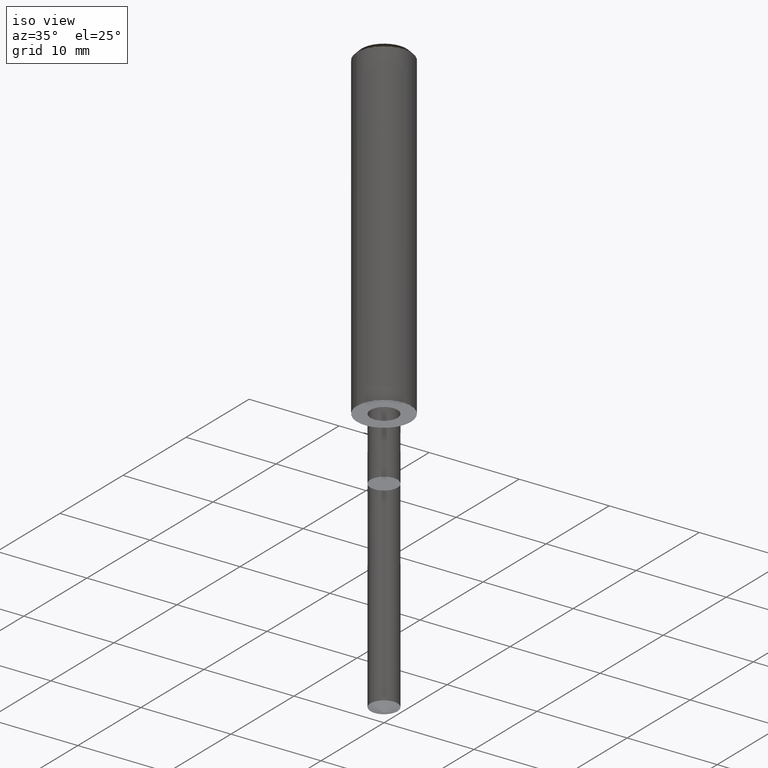
[diagram: clean part render]
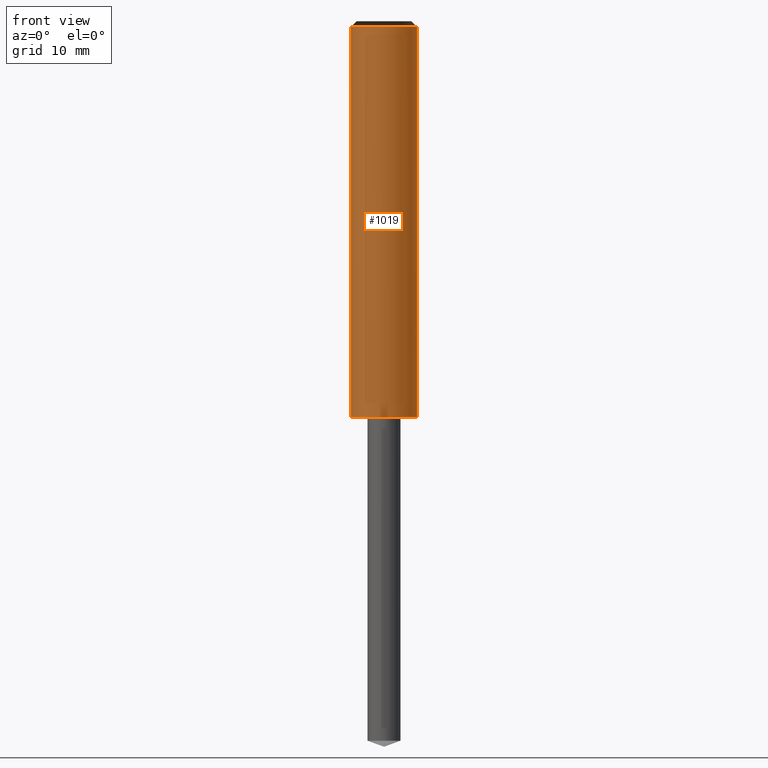
[diagram: tour spotlight — one face highlighted and labeled with its STEP entity id]
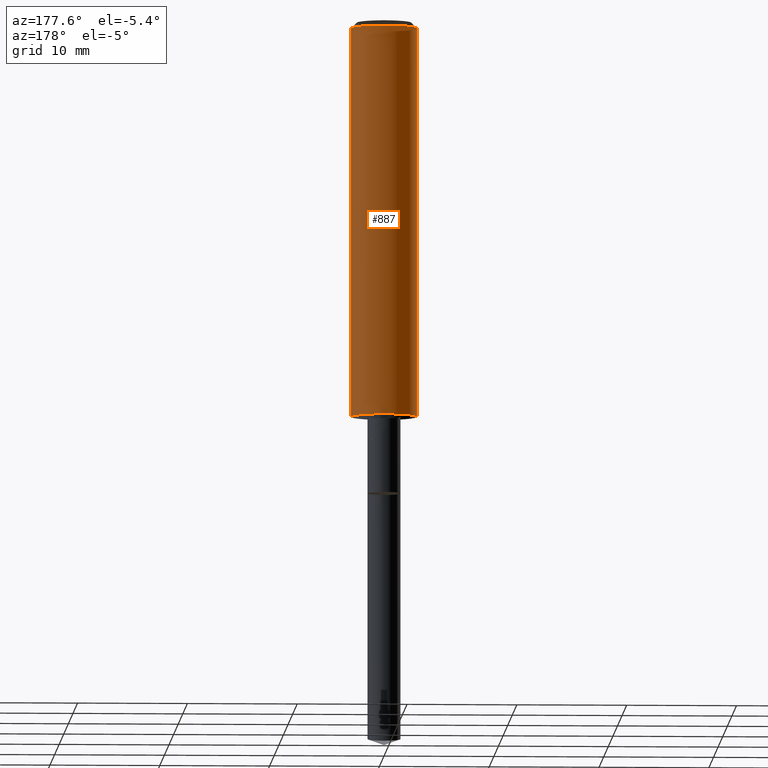
[diagram: tour spotlight — one face highlighted and labeled with its STEP entity id]
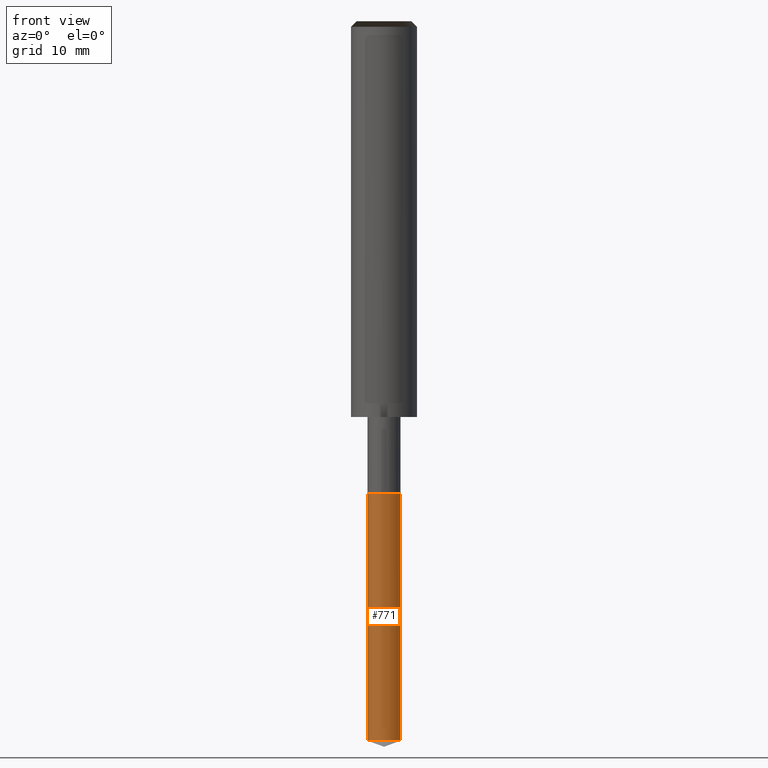
[diagram: tour spotlight — one face highlighted and labeled with its STEP entity id]
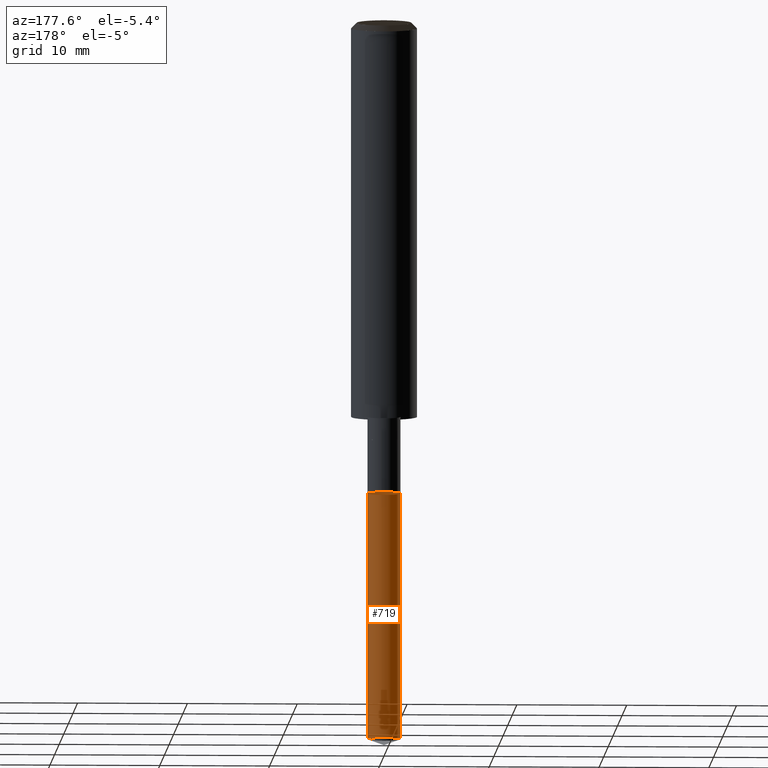
[diagram: tour spotlight — one face highlighted and labeled with its STEP entity id]
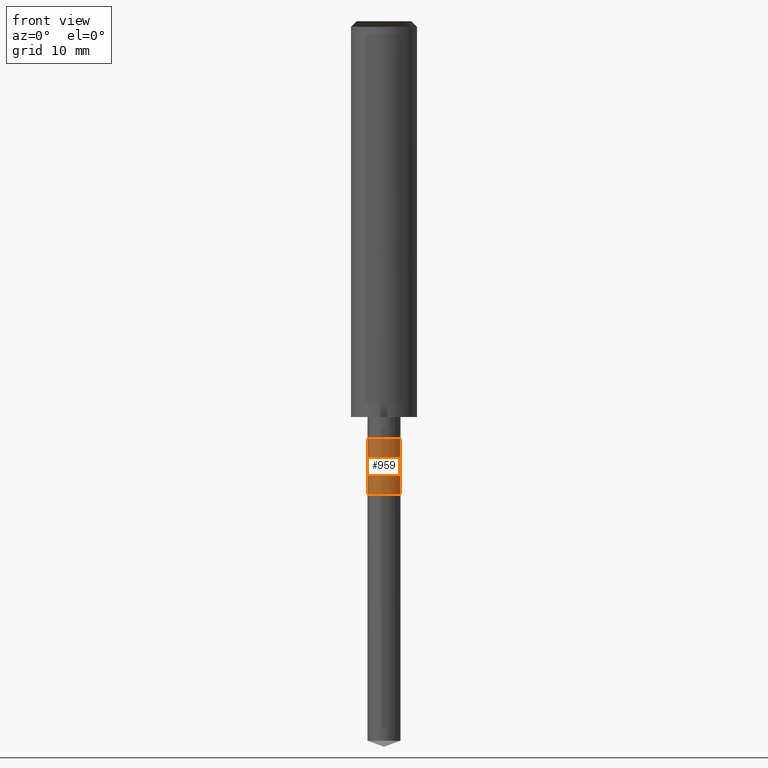
[diagram: tour spotlight — one face highlighted and labeled with its STEP entity id]
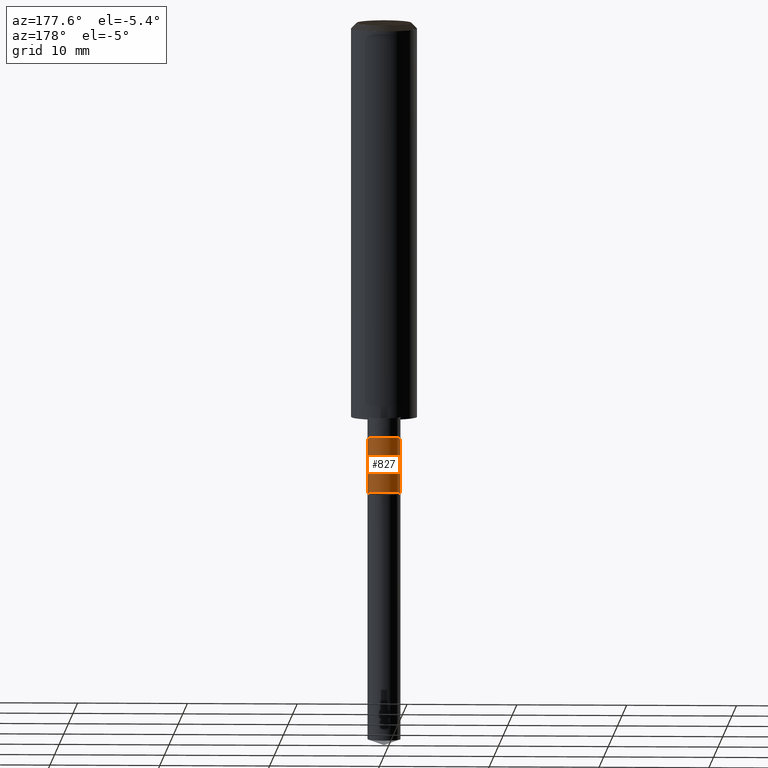
[diagram: tour spotlight — one face highlighted and labeled with its STEP entity id]
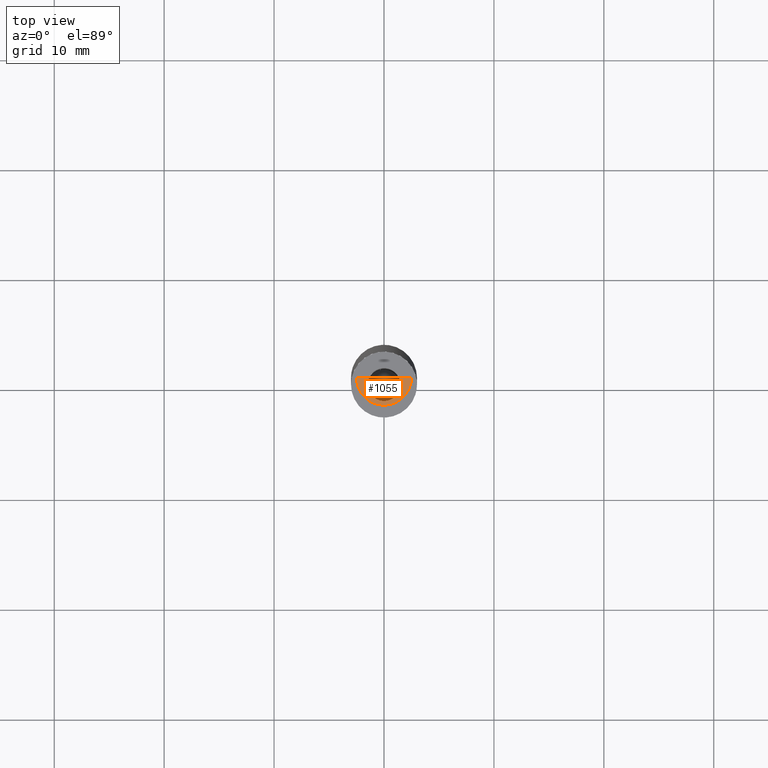
[diagram: tour spotlight — one face highlighted and labeled with its STEP entity id]
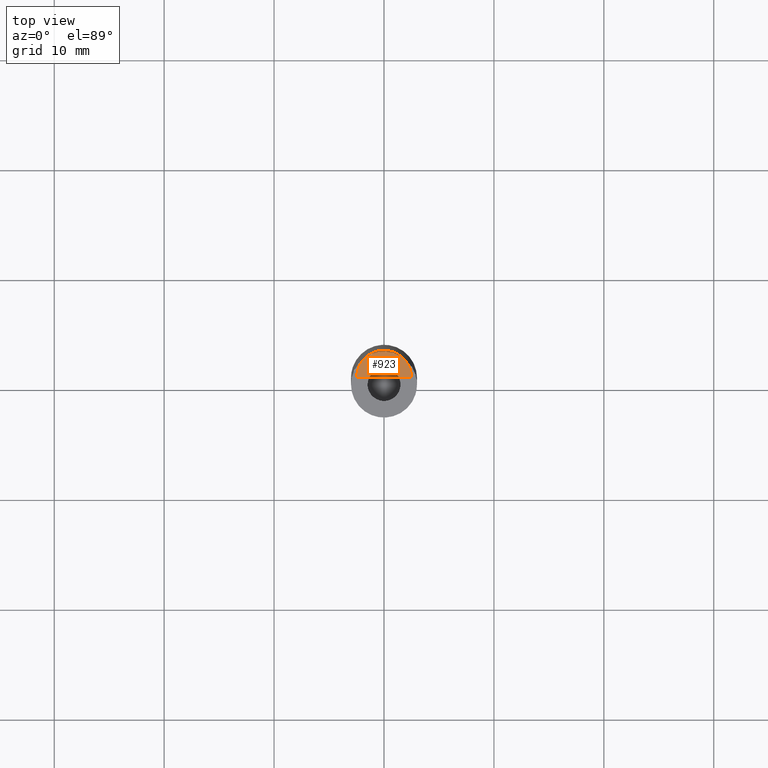
[diagram: tour spotlight — one face highlighted and labeled with its STEP entity id]
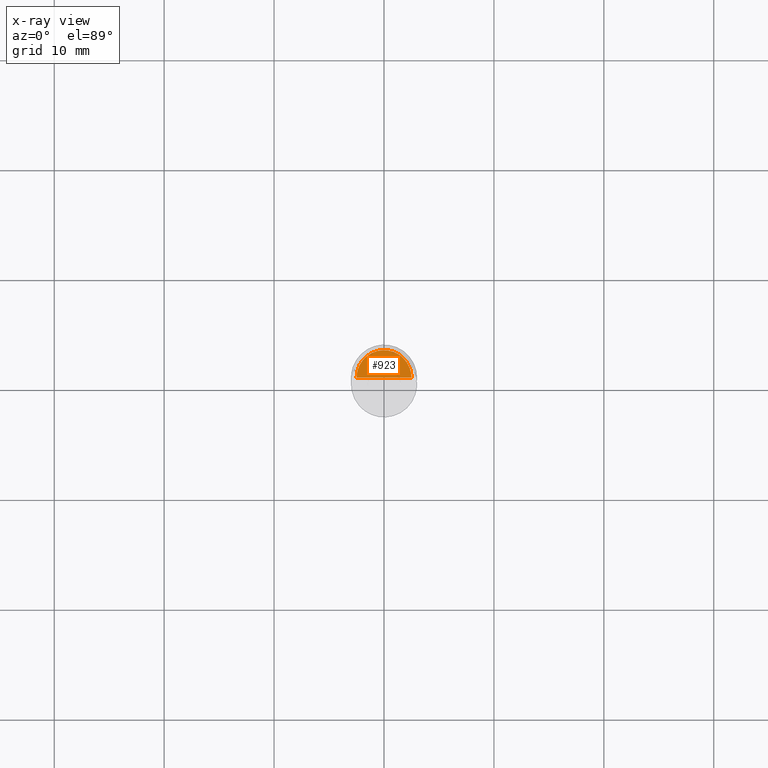
[diagram: x-ray of the same camera — body ghosted, this tour face saturated]
A machine part: a face-by-face anatomy tour. The part has 20 B-rep faces; the first image is the clean iso view, then the 8 largest visible faces are spotlighted one at a time (largest first), each with its STEP entity span.

Face 1 — front view, entity #1019. In plain terms, the highlighted face is a freeform B-spline surface patch.
Definition (entity closure, byte-faithful):
#648=CARTESIAN_POINT('',(3.0,0.0,0.0));
#652=CARTESIAN_POINT('',(-3.0,0.0,0.0));
#653=CARTESIAN_POINT('',(3.0,0.0,35.5));
#657=CARTESIAN_POINT('',(-3.0,0.0,35.5));
#670=CARTESIAN_POINT('',(-3.0,-3.0,0.0));
#671=CARTESIAN_POINT('',(0.0,-3.0,0.0));
#672=CARTESIAN_POINT('',(3.0,-3.0,0.0));
#673=CARTESIAN_POINT('',(-3.0,-3.0,35.5));
#674=CARTESIAN_POINT('',(0.0,-3.0,35.5));
#675=CARTESIAN_POINT('',(3.0,-3.0,35.5));
#1000=(
BOUNDED_SURFACE()
B_SPLINE_SURFACE(1,2,(
(#652,#670,#671,#672,#648),
(#657,#673,#674,#675,#653)
), .UNSPECIFIED.,.F.,.F.,.F.)
B_SPLINE_SURFACE_WITH_KNOTS((2,2),(3,2,3),(
0.0,1.0),(
0.0,0.5,1.0), .UNSPECIFIED.)
GEOMETRIC_REPRESENTATION_ITEM()
RATIONAL_B_SPLINE_SURFACE(((1.0,0.707106781187,1.0,0.707106781187,1.0),
(1.0,0.707106781187,1.0,0.707106781187,1.0)
))
REPRESENTATION_ITEM('')
SURFACE()
);
#1001=(
BOUNDED_CURVE()
B_SPLINE_CURVE(2,(#648,#672,#671,#670,#652),.UNSPECIFIED.,.F.,.F.)
B_SPLINE_CURVE_WITH_KNOTS((3,2,3),
(0.0,0.5,1.0),.UNSPECIFIED.)
CURVE()
GEOMETRIC_REPRESENTATION_ITEM()
RATIONAL_B_SPLINE_CURVE((1.0,0.707106781187,1.0,0.707106781187,1.0))
REPRESENTATION_ITEM('')
);
#1002=(
BOUNDED_CURVE()
B_SPLINE_CURVE(1,(#652,#657),.UNSPECIFIED.,.F.,.F.)
B_SPLINE_CURVE_WITH_KNOTS((2,2),
(0.0,1.0),.UNSPECIFIED.)
CURVE()
GEOMETRIC_REPRESENTATION_ITEM()
RATIONAL_B_SPLINE_CURVE((1.0,1.0))
REPRESENTATION_ITEM('')
);
#1003=(
BOUNDED_CURVE()
B_SPLINE_CURVE(2,(#657,#673,#674,#675,#653),.UNSPECIFIED.,.F.,.F.)
B_SPLINE_CURVE_WITH_KNOTS((3,2,3),
(0.0,0.5,1.0),.UNSPECIFIED.)
CURVE()
GEOMETRIC_REPRESENTATION_ITEM()
RATIONAL_B_SPLINE_CURVE((1.0,0.707106781187,1.0,0.707106781187,1.0))
REPRESENTATION_ITEM('')
);
#1004=(
BOUNDED_CURVE()
B_SPLINE_CURVE(1,(#653,#648),.UNSPECIFIED.,.F.,.F.)
B_SPLINE_CURVE_WITH_KNOTS((2,2),
(0.0,1.0),.UNSPECIFIED.)
CURVE()
GEOMETRIC_REPRESENTATION_ITEM()
RATIONAL_B_SPLINE_CURVE((1.0,1.0))
REPRESENTATION_ITEM('')
);
#1005=VERTEX_POINT('',#648);
#1006=VERTEX_POINT('',#652);
#1007=VERTEX_POINT('',#653);
#1008=VERTEX_POINT('',#657);
#1009=EDGE_CURVE('',#1005,#1006,#1001,.T.);
#1010=EDGE_CURVE('',#1006,#1008,#1002,.T.);
#1011=EDGE_CURVE('',#1008,#1007,#1003,.T.);
#1012=EDGE_CURVE('',#1007,#1005,#1004,.T.);
#1013=ORIENTED_EDGE('',*,*,#1009,.T.);
#1014=ORIENTED_EDGE('',*,*,#1010,.T.);
#1015=ORIENTED_EDGE('',*,*,#1011,.T.);
#1016=ORIENTED_EDGE('',*,*,#1012,.T.);
#1017=EDGE_LOOP('',(#1013,#1014,#1015,#1016));
#1018=FACE_OUTER_BOUND('',#1017,.T.);
#1019=ADVANCED_FACE('',(#1018),#1000,.T.);

Face 2 — auxiliary view, entity #887. In plain terms, the highlighted face is a freeform B-spline surface patch.
Definition (entity closure, byte-faithful):
#648=CARTESIAN_POINT('',(3.0,0.0,0.0));
#649=CARTESIAN_POINT('',(3.0,3.0,0.0));
#650=CARTESIAN_POINT('',(0.0,3.0,0.0));
#651=CARTESIAN_POINT('',(-3.0,3.0,0.0));
#652=CARTESIAN_POINT('',(-3.0,0.0,0.0));
#653=CARTESIAN_POINT('',(3.0,0.0,35.5));
#654=CARTESIAN_POINT('',(3.0,3.0,35.5));
#655=CARTESIAN_POINT('',(0.0,3.0,35.5));
#656=CARTESIAN_POINT('',(-3.0,3.0,35.5));
#657=CARTESIAN_POINT('',(-3.0,0.0,35.5));
#868=(
BOUNDED_SURFACE()
B_SPLINE_SURFACE(1,2,(
(#648,#649,#650,#651,#652),
(#653,#654,#655,#656,#657)
), .UNSPECIFIED.,.F.,.F.,.F.)
B_SPLINE_SURFACE_WITH_KNOTS((2,2),(3,2,3),(
0.0,1.0),(
0.0,0.5,1.0), .UNSPECIFIED.)
GEOMETRIC_REPRESENTATION_ITEM()
RATIONAL_B_SPLINE_SURFACE(((1.0,0.707106781187,1.0,0.707106781187,1.0),
(1.0,0.707106781187,1.0,0.707106781187,1.0)
))
REPRESENTATION_ITEM('')
SURFACE()
);
#869=(
BOUNDED_CURVE()
B_SPLINE_CURVE(2,(#652,#651,#650,#649,#648),.UNSPECIFIED.,.F.,.F.)
B_SPLINE_CURVE_WITH_KNOTS((3,2,3),
(0.0,0.5,1.0),.UNSPECIFIED.)
CURVE()
GEOMETRIC_REPRESENTATION_ITEM()
RATIONAL_B_SPLINE_CURVE((1.0,0.707106781187,1.0,0.707106781187,1.0))
REPRESENTATION_ITEM('')
);
#870=(
BOUNDED_CURVE()
B_SPLINE_CURVE(1,(#648,#653),.UNSPECIFIED.,.F.,.F.)
B_SPLINE_CURVE_WITH_KNOTS((2,2),
(0.0,1.0),.UNSPECIFIED.)
CURVE()
GEOMETRIC_REPRESENTATION_ITEM()
RATIONAL_B_SPLINE_CURVE((1.0,1.0))
REPRESENTATION_ITEM('')
);
#871=(
BOUNDED_CURVE()
B_SPLINE_CURVE(2,(#653,#654,#655,#656,#657),.UNSPECIFIED.,.F.,.F.)
B_SPLINE_CURVE_WITH_KNOTS((3,2,3),
(0.0,0.5,1.0),.UNSPECIFIED.)
CURVE()
GEOMETRIC_REPRESENTATION_ITEM()
RATIONAL_B_SPLINE_CURVE((1.0,0.707106781187,1.0,0.707106781187,1.0))
REPRESENTATION_ITEM('')
);
#872=(
BOUNDED_CURVE()
B_SPLINE_CURVE(1,(#657,#652),.UNSPECIFIED.,.F.,.F.)
B_SPLINE_CURVE_WITH_KNOTS((2,2),
(0.0,1.0),.UNSPECIFIED.)
CURVE()
GEOMETRIC_REPRESENTATION_ITEM()
RATIONAL_B_SPLINE_CURVE((1.0,1.0))
REPRESENTATION_ITEM('')
);
#873=VERTEX_POINT('',#648);
#874=VERTEX_POINT('',#652);
#875=VERTEX_POINT('',#653);
#876=VERTEX_POINT('',#657);
#877=EDGE_CURVE('',#874,#873,#869,.T.);
#878=EDGE_CURVE('',#873,#875,#870,.T.);
#879=EDGE_CURVE('',#875,#876,#871,.T.);
#880=EDGE_CURVE('',#876,#874,#872,.T.);
#881=ORIENTED_EDGE('',*,*,#877,.T.);
#882=ORIENTED_EDGE('',*,*,#878,.T.);
#883=ORIENTED_EDGE('',*,*,#879,.T.);
#884=ORIENTED_EDGE('',*,*,#880,.T.);
#885=EDGE_LOOP('',(#881,#882,#883,#884));
#886=FACE_OUTER_BOUND('',#885,.T.);
#887=ADVANCED_FACE('',(#886),#868,.T.);

Face 3 — front view, entity #771. In plain terms, the highlighted face is a freeform B-spline surface patch.
Definition (entity closure, byte-faithful):
#621=CARTESIAN_POINT('',(1.5,0.0,-29.454044648601));
#625=CARTESIAN_POINT('',(-1.5,0.0,-29.454044648601));
#626=CARTESIAN_POINT('',(1.5,0.0,-7.0));
#630=CARTESIAN_POINT('',(-1.5,0.0,-7.0));
#632=CARTESIAN_POINT('',(-1.5,-1.5,-29.454044648601));
#633=CARTESIAN_POINT('',(0.0,-1.5,-29.454044648601));
#634=CARTESIAN_POINT('',(1.5,-1.5,-29.454044648601));
#635=CARTESIAN_POINT('',(-1.5,-1.5,-7.0));
#636=CARTESIAN_POINT('',(0.0,-1.5,-7.0));
#637=CARTESIAN_POINT('',(1.5,-1.5,-7.0));
#752=(
BOUNDED_SURFACE()
B_SPLINE_SURFACE(1,2,(
(#625,#632,#633,#634,#621),
(#630,#635,#636,#637,#626)
), .UNSPECIFIED.,.F.,.F.,.F.)
B_SPLINE_SURFACE_WITH_KNOTS((2,2),(3,2,3),(
0.0,1.0),(
0.0,0.5,1.0), .UNSPECIFIED.)
GEOMETRIC_REPRESENTATION_ITEM()
RATIONAL_B_SPLINE_SURFACE(((1.0,0.707106781187,1.0,0.707106781187,1.0),
(1.0,0.707106781187,1.0,0.707106781187,1.0)
))
REPRESENTATION_ITEM('')
SURFACE()
);
#753=(
BOUNDED_CURVE()
B_SPLINE_CURVE(2,(#621,#634,#633,#632,#625),.UNSPECIFIED.,.F.,.F.)
B_SPLINE_CURVE_WITH_KNOTS((3,2,3),
(0.0,0.5,1.0),.UNSPECIFIED.)
CURVE()
GEOMETRIC_REPRESENTATION_ITEM()
RATIONAL_B_SPLINE_CURVE((1.0,0.707106781187,1.0,0.707106781187,1.0))
REPRESENTATION_ITEM('')
);
#754=(
BOUNDED_CURVE()
B_SPLINE_CURVE(1,(#625,#630),.UNSPECIFIED.,.F.,.F.)
B_SPLINE_CURVE_WITH_KNOTS((2,2),
(0.0,1.0),.UNSPECIFIED.)
CURVE()
GEOMETRIC_REPRESENTATION_ITEM()
RATIONAL_B_SPLINE_CURVE((1.0,1.0))
REPRESENTATION_ITEM('')
);
#755=(
BOUNDED_CURVE()
B_SPLINE_CURVE(2,(#630,#635,#636,#637,#626),.UNSPECIFIED.,.F.,.F.)
B_SPLINE_CURVE_WITH_KNOTS((3,2,3),
(0.0,0.5,1.0),.UNSPECIFIED.)
CURVE()
GEOMETRIC_REPRESENTATION_ITEM()
RATIONAL_B_SPLINE_CURVE((1.0,0.707106781187,1.0,0.707106781187,1.0))
REPRESENTATION_ITEM('')
);
#756=(
BOUNDED_CURVE()
B_SPLINE_CURVE(1,(#626,#621),.UNSPECIFIED.,.F.,.F.)
B_SPLINE_CURVE_WITH_KNOTS((2,2),
(0.0,1.0),.UNSPECIFIED.)
CURVE()
GEOMETRIC_REPRESENTATION_ITEM()
RATIONAL_B_SPLINE_CURVE((1.0,1.0))
REPRESENTATION_ITEM('')
);
#757=VERTEX_POINT('',#621);
#758=VERTEX_POINT('',#625);
#759=VERTEX_POINT('',#626);
#760=VERTEX_POINT('',#630);
#761=EDGE_CURVE('',#757,#758,#753,.T.);
#762=EDGE_CURVE('',#758,#760,#754,.T.);
#763=EDGE_CURVE('',#760,#759,#755,.T.);
#764=EDGE_CURVE('',#759,#757,#756,.T.);
#765=ORIENTED_EDGE('',*,*,#761,.T.);
#766=ORIENTED_EDGE('',*,*,#762,.T.);
#767=ORIENTED_EDGE('',*,*,#763,.T.);
#768=ORIENTED_EDGE('',*,*,#764,.T.);
#769=EDGE_LOOP('',(#765,#766,#767,#768));
#770=FACE_OUTER_BOUND('',#769,.T.);
#771=ADVANCED_FACE('',(#770),#752,.T.);

Face 4 — auxiliary view, entity #719. In plain terms, the highlighted face is a freeform B-spline surface patch.
Definition (entity closure, byte-faithful):
#621=CARTESIAN_POINT('',(1.5,0.0,-29.454044648601));
#622=CARTESIAN_POINT('',(1.5,1.5,-29.454044648601));
#623=CARTESIAN_POINT('',(0.0,1.5,-29.454044648601));
#624=CARTESIAN_POINT('',(-1.5,1.5,-29.454044648601));
#625=CARTESIAN_POINT('',(-1.5,0.0,-29.454044648601));
#626=CARTESIAN_POINT('',(1.5,0.0,-7.0));
#627=CARTESIAN_POINT('',(1.5,1.5,-7.0));
#628=CARTESIAN_POINT('',(0.0,1.5,-7.0));
#629=CARTESIAN_POINT('',(-1.5,1.5,-7.0));
#630=CARTESIAN_POINT('',(-1.5,0.0,-7.0));
#700=(
BOUNDED_SURFACE()
B_SPLINE_SURFACE(1,2,(
(#621,#622,#623,#624,#625),
(#626,#627,#628,#629,#630)
), .UNSPECIFIED.,.F.,.F.,.F.)
B_SPLINE_SURFACE_WITH_KNOTS((2,2),(3,2,3),(
0.0,1.0),(
0.0,0.5,1.0), .UNSPECIFIED.)
GEOMETRIC_REPRESENTATION_ITEM()
RATIONAL_B_SPLINE_SURFACE(((1.0,0.707106781187,1.0,0.707106781187,1.0),
(1.0,0.707106781187,1.0,0.707106781187,1.0)
))
REPRESENTATION_ITEM('')
SURFACE()
);
#701=(
BOUNDED_CURVE()
B_SPLINE_CURVE(2,(#625,#624,#623,#622,#621),.UNSPECIFIED.,.F.,.F.)
B_SPLINE_CURVE_WITH_KNOTS((3,2,3),
(0.0,0.5,1.0),.UNSPECIFIED.)
CURVE()
GEOMETRIC_REPRESENTATION_ITEM()
RATIONAL_B_SPLINE_CURVE((1.0,0.707106781187,1.0,0.707106781187,1.0))
REPRESENTATION_ITEM('')
);
#702=(
BOUNDED_CURVE()
B_SPLINE_CURVE(1,(#621,#626),.UNSPECIFIED.,.F.,.F.)
B_SPLINE_CURVE_WITH_KNOTS((2,2),
(0.0,1.0),.UNSPECIFIED.)
CURVE()
GEOMETRIC_REPRESENTATION_ITEM()
RATIONAL_B_SPLINE_CURVE((1.0,1.0))
REPRESENTATION_ITEM('')
);
#703=(
BOUNDED_CURVE()
B_SPLINE_CURVE(2,(#626,#627,#628,#629,#630),.UNSPECIFIED.,.F.,.F.)
B_SPLINE_CURVE_WITH_KNOTS((3,2,3),
(0.0,0.5,1.0),.UNSPECIFIED.)
CURVE()
GEOMETRIC_REPRESENTATION_ITEM()
RATIONAL_B_SPLINE_CURVE((1.0,0.707106781187,1.0,0.707106781187,1.0))
REPRESENTATION_ITEM('')
);
#704=(
BOUNDED_CURVE()
B_SPLINE_CURVE(1,(#630,#625),.UNSPECIFIED.,.F.,.F.)
B_SPLINE_CURVE_WITH_KNOTS((2,2),
(0.0,1.0),.UNSPECIFIED.)
CURVE()
GEOMETRIC_REPRESENTATION_ITEM()
RATIONAL_B_SPLINE_CURVE((1.0,1.0))
REPRESENTATION_ITEM('')
);
#705=VERTEX_POINT('',#621);
#706=VERTEX_POINT('',#625);
#707=VERTEX_POINT('',#626);
#708=VERTEX_POINT('',#630);
#709=EDGE_CURVE('',#706,#705,#701,.T.);
#710=EDGE_CURVE('',#705,#707,#702,.T.);
#711=EDGE_CURVE('',#707,#708,#703,.T.);
#712=EDGE_CURVE('',#708,#706,#704,.T.);
#713=ORIENTED_EDGE('',*,*,#709,.T.);
#714=ORIENTED_EDGE('',*,*,#710,.T.);
#715=ORIENTED_EDGE('',*,*,#711,.T.);
#716=ORIENTED_EDGE('',*,*,#712,.T.);
#717=EDGE_LOOP('',(#713,#714,#715,#716));
#718=FACE_OUTER_BOUND('',#717,.T.);
#719=ADVANCED_FACE('',(#718),#700,.T.);

Face 5 — front view, entity #959. In plain terms, the highlighted face is a freeform B-spline surface patch.
Definition (entity closure, byte-faithful):
#626=CARTESIAN_POINT('',(1.5,0.0,-7.0));
#630=CARTESIAN_POINT('',(-1.5,0.0,-7.0));
#635=CARTESIAN_POINT('',(-1.5,-1.5,-7.0));
#636=CARTESIAN_POINT('',(0.0,-1.5,-7.0));
#637=CARTESIAN_POINT('',(1.5,-1.5,-7.0));
#638=CARTESIAN_POINT('',(1.5,0.0,-2.0));
#642=CARTESIAN_POINT('',(-1.5,0.0,-2.0));
#664=CARTESIAN_POINT('',(-1.5,-1.5,-2.0));
#665=CARTESIAN_POINT('',(0.0,-1.5,-2.0));
#666=CARTESIAN_POINT('',(1.5,-1.5,-2.0));
#940=(
BOUNDED_SURFACE()
B_SPLINE_SURFACE(1,2,(
(#630,#635,#636,#637,#626),
(#642,#664,#665,#666,#638)
), .UNSPECIFIED.,.F.,.F.,.F.)
B_SPLINE_SURFACE_WITH_KNOTS((2,2),(3,2,3),(
0.0,1.0),(
0.0,0.5,1.0), .UNSPECIFIED.)
GEOMETRIC_REPRESENTATION_ITEM()
RATIONAL_B_SPLINE_SURFACE(((1.0,0.707106781187,1.0,0.707106781187,1.0),
(1.0,0.707106781187,1.0,0.707106781187,1.0)
))
REPRESENTATION_ITEM('')
SURFACE()
);
#941=(
BOUNDED_CURVE()
B_SPLINE_CURVE(2,(#626,#637,#636,#635,#630),.UNSPECIFIED.,.F.,.F.)
B_SPLINE_CURVE_WITH_KNOTS((3,2,3),
(0.0,0.5,1.0),.UNSPECIFIED.)
CURVE()
GEOMETRIC_REPRESENTATION_ITEM()
RATIONAL_B_SPLINE_CURVE((1.0,0.707106781187,1.0,0.707106781187,1.0))
REPRESENTATION_ITEM('')
);
#942=(
BOUNDED_CURVE()
B_SPLINE_CURVE(1,(#630,#642),.UNSPECIFIED.,.F.,.F.)
B_SPLINE_CURVE_WITH_KNOTS((2,2),
(0.0,1.0),.UNSPECIFIED.)
CURVE()
GEOMETRIC_REPRESENTATION_ITEM()
RATIONAL_B_SPLINE_CURVE((1.0,1.0))
REPRESENTATION_ITEM('')
);
#943=(
BOUNDED_CURVE()
B_SPLINE_CURVE(2,(#642,#664,#665,#666,#638),.UNSPECIFIED.,.F.,.F.)
B_SPLINE_CURVE_WITH_KNOTS((3,2,3),
(0.0,0.5,1.0),.UNSPECIFIED.)
CURVE()
GEOMETRIC_REPRESENTATION_ITEM()
RATIONAL_B_SPLINE_CURVE((1.0,0.707106781187,1.0,0.707106781187,1.0))
REPRESENTATION_ITEM('')
);
#944=(
BOUNDED_CURVE()
B_SPLINE_CURVE(1,(#638,#626),.UNSPECIFIED.,.F.,.F.)
B_SPLINE_CURVE_WITH_KNOTS((2,2),
(0.0,1.0),.UNSPECIFIED.)
CURVE()
GEOMETRIC_REPRESENTATION_ITEM()
RATIONAL_B_SPLINE_CURVE((1.0,1.0))
REPRESENTATION_ITEM('')
);
#945=VERTEX_POINT('',#626);
#946=VERTEX_POINT('',#630);
#947=VERTEX_POINT('',#638);
#948=VERTEX_POINT('',#642);
#949=EDGE_CURVE('',#945,#946,#941,.T.);
#950=EDGE_CURVE('',#946,#948,#942,.T.);
#951=EDGE_CURVE('',#948,#947,#943,.T.);
#952=EDGE_CURVE('',#947,#945,#944,.T.);
#953=ORIENTED_EDGE('',*,*,#949,.T.);
#954=ORIENTED_EDGE('',*,*,#950,.T.);
#955=ORIENTED_EDGE('',*,*,#951,.T.);
#956=ORIENTED_EDGE('',*,*,#952,.T.);
#957=EDGE_LOOP('',(#953,#954,#955,#956));
#958=FACE_OUTER_BOUND('',#957,.T.);
#959=ADVANCED_FACE('',(#958),#940,.T.);

Face 6 — auxiliary view, entity #827. In plain terms, the highlighted face is a freeform B-spline surface patch.
Definition (entity closure, byte-faithful):
#626=CARTESIAN_POINT('',(1.5,0.0,-7.0));
#627=CARTESIAN_POINT('',(1.5,1.5,-7.0));
#628=CARTESIAN_POINT('',(0.0,1.5,-7.0));
#629=CARTESIAN_POINT('',(-1.5,1.5,-7.0));
#630=CARTESIAN_POINT('',(-1.5,0.0,-7.0));
#638=CARTESIAN_POINT('',(1.5,0.0,-2.0));
#639=CARTESIAN_POINT('',(1.5,1.5,-2.0));
#640=CARTESIAN_POINT('',(0.0,1.5,-2.0));
#641=CARTESIAN_POINT('',(-1.5,1.5,-2.0));
#642=CARTESIAN_POINT('',(-1.5,0.0,-2.0));
#808=(
BOUNDED_SURFACE()
B_SPLINE_SURFACE(1,2,(
(#626,#627,#628,#629,#630),
(#638,#639,#640,#641,#642)
), .UNSPECIFIED.,.F.,.F.,.F.)
B_SPLINE_SURFACE_WITH_KNOTS((2,2),(3,2,3),(
0.0,1.0),(
0.0,0.5,1.0), .UNSPECIFIED.)
GEOMETRIC_REPRESENTATION_ITEM()
RATIONAL_B_SPLINE_SURFACE(((1.0,0.707106781187,1.0,0.707106781187,1.0),
(1.0,0.707106781187,1.0,0.707106781187,1.0)
))
REPRESENTATION_ITEM('')
SURFACE()
);
#809=(
BOUNDED_CURVE()
B_SPLINE_CURVE(2,(#630,#629,#628,#627,#626),.UNSPECIFIED.,.F.,.F.)
B_SPLINE_CURVE_WITH_KNOTS((3,2,3),
(0.0,0.5,1.0),.UNSPECIFIED.)
CURVE()
GEOMETRIC_REPRESENTATION_ITEM()
RATIONAL_B_SPLINE_CURVE((1.0,0.707106781187,1.0,0.707106781187,1.0))
REPRESENTATION_ITEM('')
);
#810=(
BOUNDED_CURVE()
B_SPLINE_CURVE(1,(#626,#638),.UNSPECIFIED.,.F.,.F.)
B_SPLINE_CURVE_WITH_KNOTS((2,2),
(0.0,1.0),.UNSPECIFIED.)
CURVE()
GEOMETRIC_REPRESENTATION_ITEM()
RATIONAL_B_SPLINE_CURVE((1.0,1.0))
REPRESENTATION_ITEM('')
);
#811=(
BOUNDED_CURVE()
B_SPLINE_CURVE(2,(#638,#639,#640,#641,#642),.UNSPECIFIED.,.F.,.F.)
B_SPLINE_CURVE_WITH_KNOTS((3,2,3),
(0.0,0.5,1.0),.UNSPECIFIED.)
CURVE()
GEOMETRIC_REPRESENTATION_ITEM()
RATIONAL_B_SPLINE_CURVE((1.0,0.707106781187,1.0,0.707106781187,1.0))
REPRESENTATION_ITEM('')
);
#812=(
BOUNDED_CURVE()
B_SPLINE_CURVE(1,(#642,#630),.UNSPECIFIED.,.F.,.F.)
B_SPLINE_CURVE_WITH_KNOTS((2,2),
(0.0,1.0),.UNSPECIFIED.)
CURVE()
GEOMETRIC_REPRESENTATION_ITEM()
RATIONAL_B_SPLINE_CURVE((1.0,1.0))
REPRESENTATION_ITEM('')
);
#813=VERTEX_POINT('',#626);
#814=VERTEX_POINT('',#630);
#815=VERTEX_POINT('',#638);
#816=VERTEX_POINT('',#642);
#817=EDGE_CURVE('',#814,#813,#809,.T.);
#818=EDGE_CURVE('',#813,#815,#810,.T.);
#819=EDGE_CURVE('',#815,#816,#811,.T.);
#820=EDGE_CURVE('',#816,#814,#812,.T.);
#821=ORIENTED_EDGE('',*,*,#817,.T.);
#822=ORIENTED_EDGE('',*,*,#818,.T.);
#823=ORIENTED_EDGE('',*,*,#819,.T.);
#824=ORIENTED_EDGE('',*,*,#820,.T.);
#825=EDGE_LOOP('',(#821,#822,#823,#824));
#826=FACE_OUTER_BOUND('',#825,.T.);
#827=ADVANCED_FACE('',(#826),#808,.T.);

Face 7 — top view, entity #1055. In plain terms, the highlighted face is a freeform B-spline surface patch.
Definition (entity closure, byte-faithful):
#658=CARTESIAN_POINT('',(2.5,0.0,36.0));
#662=CARTESIAN_POINT('',(-2.5,0.0,36.0));
#663=CARTESIAN_POINT('',(0.0,0.0,36.0));
#676=CARTESIAN_POINT('',(-2.5,-2.5,36.0));
#677=CARTESIAN_POINT('',(0.0,-2.5,36.0));
#678=CARTESIAN_POINT('',(2.5,-2.5,36.0));
#1040=(
BOUNDED_SURFACE()
B_SPLINE_SURFACE(1,2,(
(#662,#676,#677,#678,#658),
(#663,#663,#663,#663,#663)
), .UNSPECIFIED.,.F.,.F.,.F.)
B_SPLINE_SURFACE_WITH_KNOTS((2,2),(3,2,3),(
0.0,1.0),(
0.0,0.5,1.0), .UNSPECIFIED.)
GEOMETRIC_REPRESENTATION_ITEM()
RATIONAL_B_SPLINE_SURFACE(((1.0,0.707106781187,1.0,0.707106781187,1.0),
(1.0,0.707106781187,1.0,0.707106781187,1.0)
))
REPRESENTATION_ITEM('')
SURFACE()
);
#1041=(
BOUNDED_CURVE()
B_SPLINE_CURVE(2,(#658,#678,#677,#676,#662),.UNSPECIFIED.,.F.,.F.)
B_SPLINE_CURVE_WITH_KNOTS((3,2,3),
(0.0,0.5,1.0),.UNSPECIFIED.)
CURVE()
GEOMETRIC_REPRESENTATION_ITEM()
RATIONAL_B_SPLINE_CURVE((1.0,0.707106781187,1.0,0.707106781187,1.0))
REPRESENTATION_ITEM('')
);
#1042=(
BOUNDED_CURVE()
B_SPLINE_CURVE(1,(#662,#663),.UNSPECIFIED.,.F.,.F.)
B_SPLINE_CURVE_WITH_KNOTS((2,2),
(0.0,1.0),.UNSPECIFIED.)
CURVE()
GEOMETRIC_REPRESENTATION_ITEM()
RATIONAL_B_SPLINE_CURVE((1.0,1.0))
REPRESENTATION_ITEM('')
);
#1043=(
BOUNDED_CURVE()
B_SPLINE_CURVE(1,(#663,#658),.UNSPECIFIED.,.F.,.F.)
B_SPLINE_CURVE_WITH_KNOTS((2,2),
(0.0,1.0),.UNSPECIFIED.)
CURVE()
GEOMETRIC_REPRESENTATION_ITEM()
RATIONAL_B_SPLINE_CURVE((1.0,1.0))
REPRESENTATION_ITEM('')
);
#1044=VERTEX_POINT('',#658);
#1045=VERTEX_POINT('',#662);
#1046=VERTEX_POINT('',#663);
#1047=EDGE_CURVE('',#1044,#1045,#1041,.T.);
#1048=EDGE_CURVE('',#1045,#1046,#1042,.T.);
#1049=EDGE_CURVE('',#1046,#1044,#1043,.T.);
#1050=ORIENTED_EDGE('',*,*,#1047,.T.);
#1051=ORIENTED_EDGE('',*,*,#1048,.T.);
#1052=ORIENTED_EDGE('',*,*,#1049,.T.);
#1053=EDGE_LOOP('',(#1050,#1051,#1052));
#1054=FACE_OUTER_BOUND('',#1053,.T.);
#1055=ADVANCED_FACE('',(#1054),#1040,.T.);

Face 8 — top view, entity #923. An x-ray twin of the same camera follows (body ghosted, this face saturated) — the face is partly hidden behind the body. In plain terms, the highlighted face is a freeform B-spline surface patch.
Definition (entity closure, byte-faithful):
#658=CARTESIAN_POINT('',(2.5,0.0,36.0));
#659=CARTESIAN_POINT('',(2.5,2.5,36.0));
#660=CARTESIAN_POINT('',(0.0,2.5,36.0));
#661=CARTESIAN_POINT('',(-2.5,2.5,36.0));
#662=CARTESIAN_POINT('',(-2.5,0.0,36.0));
#663=CARTESIAN_POINT('',(0.0,0.0,36.0));
#908=(
BOUNDED_SURFACE()
B_SPLINE_SURFACE(1,2,(
(#658,#659,#660,#661,#662),
(#663,#663,#663,#663,#663)
), .UNSPECIFIED.,.F.,.F.,.F.)
B_SPLINE_SURFACE_WITH_KNOTS((2,2),(3,2,3),(
0.0,1.0),(
0.0,0.5,1.0), .UNSPECIFIED.)
GEOMETRIC_REPRESENTATION_ITEM()
RATIONAL_B_SPLINE_SURFACE(((1.0,0.707106781187,1.0,0.707106781187,1.0),
(1.0,0.707106781187,1.0,0.707106781187,1.0)
))
REPRESENTATION_ITEM('')
SURFACE()
);
#909=(
BOUNDED_CURVE()
B_SPLINE_CURVE(2,(#662,#661,#660,#659,#658),.UNSPECIFIED.,.F.,.F.)
B_SPLINE_CURVE_WITH_KNOTS((3,2,3),
(0.0,0.5,1.0),.UNSPECIFIED.)
CURVE()
GEOMETRIC_REPRESENTATION_ITEM()
RATIONAL_B_SPLINE_CURVE((1.0,0.707106781187,1.0,0.707106781187,1.0))
REPRESENTATION_ITEM('')
);
#910=(
BOUNDED_CURVE()
B_SPLINE_CURVE(1,(#658,#663),.UNSPECIFIED.,.F.,.F.)
B_SPLINE_CURVE_WITH_KNOTS((2,2),
(0.0,1.0),.UNSPECIFIED.)
CURVE()
GEOMETRIC_REPRESENTATION_ITEM()
RATIONAL_B_SPLINE_CURVE((1.0,1.0))
REPRESENTATION_ITEM('')
);
#911=(
BOUNDED_CURVE()
B_SPLINE_CURVE(1,(#663,#662),.UNSPECIFIED.,.F.,.F.)
B_SPLINE_CURVE_WITH_KNOTS((2,2),
(0.0,1.0),.UNSPECIFIED.)
CURVE()
GEOMETRIC_REPRESENTATION_ITEM()
RATIONAL_B_SPLINE_CURVE((1.0,1.0))
REPRESENTATION_ITEM('')
);
#912=VERTEX_POINT('',#658);
#913=VERTEX_POINT('',#662);
#914=VERTEX_POINT('',#663);
#915=EDGE_CURVE('',#913,#912,#909,.T.);
#916=EDGE_CURVE('',#912,#914,#910,.T.);
#917=EDGE_CURVE('',#914,#913,#911,.T.);
#918=ORIENTED_EDGE('',*,*,#915,.T.);
#919=ORIENTED_EDGE('',*,*,#916,.T.);
#920=ORIENTED_EDGE('',*,*,#917,.T.);
#921=EDGE_LOOP('',(#918,#919,#920));
#922=FACE_OUTER_BOUND('',#921,.T.);
#923=ADVANCED_FACE('',(#922),#908,.T.);